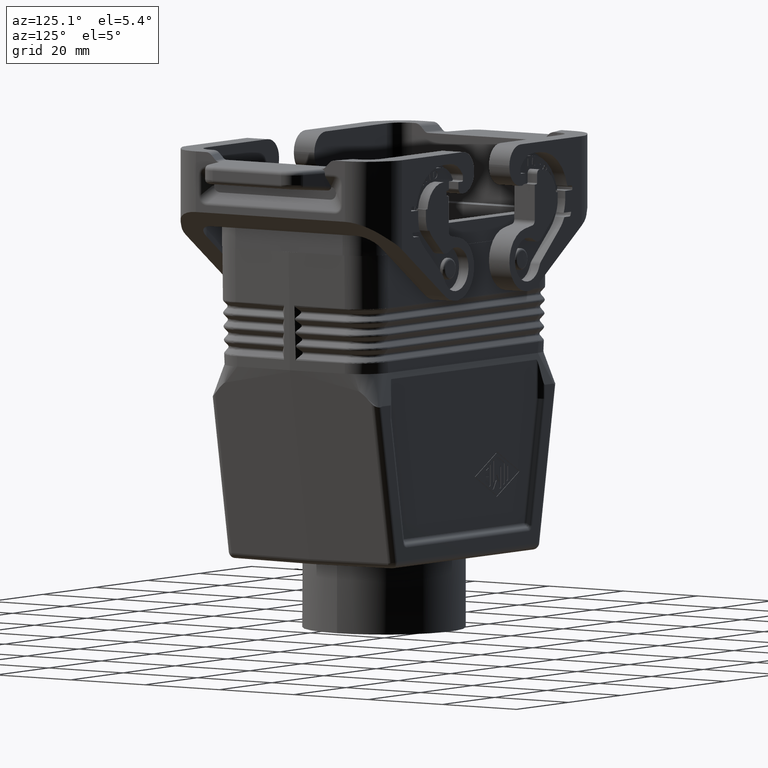
[diagram: clean part render]
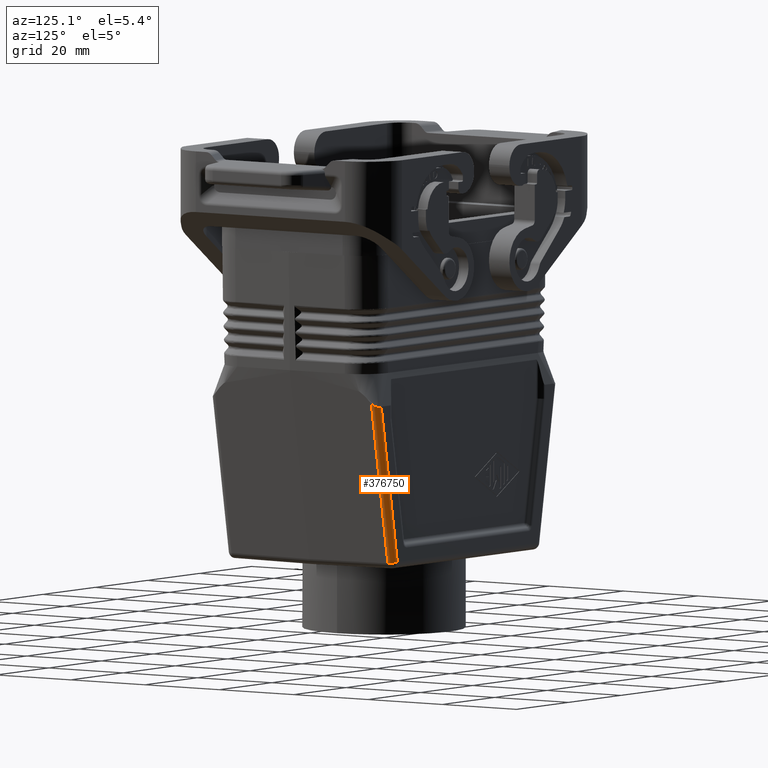
[diagram: same view with one face highlighted and labeled with its STEP entity id]
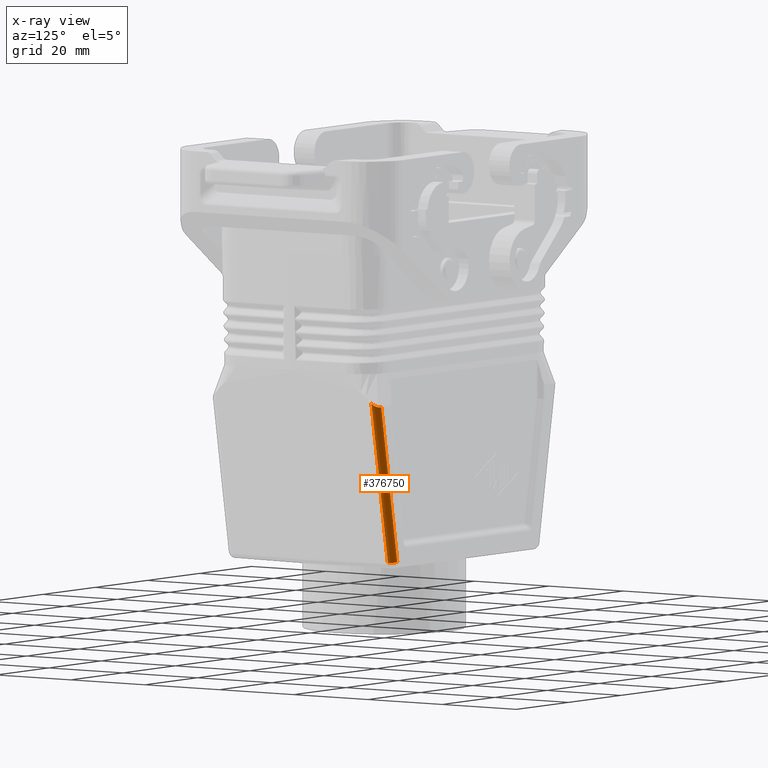
[diagram: x-ray of the same camera — body ghosted, the highlighted face saturated]
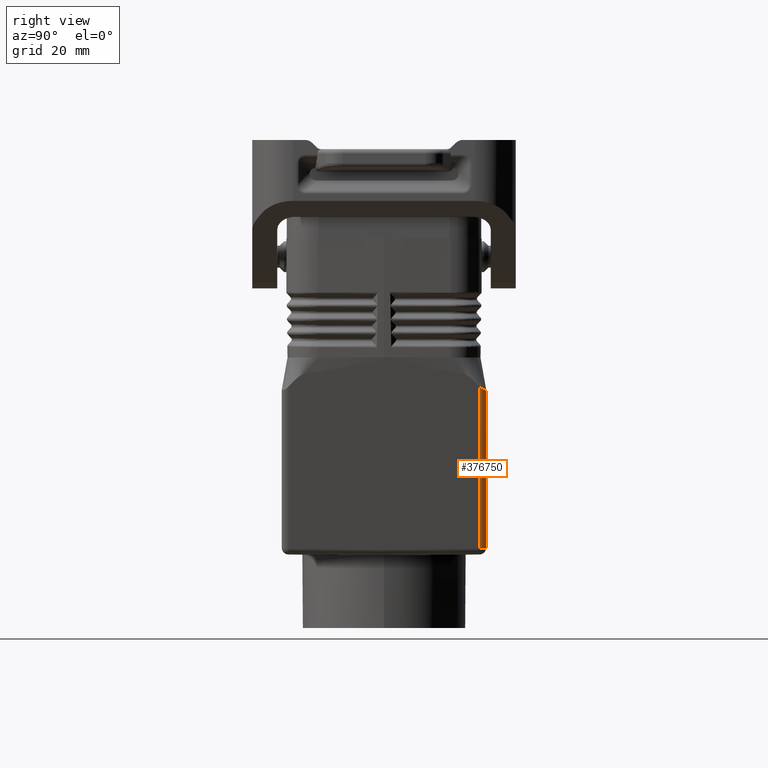
[diagram: same view with one face highlighted and labeled with its STEP entity id]
A machine part, auxiliary view. The second image highlights one B-rep face of the part: STEP entity #376750.
The next image is the same camera in x-ray: the body ghosted, the highlighted face saturated — about 0% of this face is hidden behind the body in this view.
A second angle (right view) of the same face is appended — the face is thin or edge-on in the first view.
In plain terms, the highlighted cylindrical surface (edge-blend (fillet) strip) has radius 1.5 mm, axis along (0.1737, -0, 0.9848).
Its self-contained STEP definition (entity closure, byte-faithful):
#194300=CARTESIAN_POINT('',(74.3722335945684,-1.25369332327057,
26.4503933502534));
#194310=CARTESIAN_POINT('',(74.3722335945684,-2.15748339873318,
26.4503933502534));
#194320=CARTESIAN_POINT('',(74.5472324668817,-3.05267802881065,
26.4503933616133));
#194330=CARTESIAN_POINT('',(75.0010106738518,-4.16889562860016,
26.4503933907643));
#194340=CARTESIAN_POINT('',(75.1321108299956,-4.43974349232645,
26.4503933992191));
#194350=CARTESIAN_POINT('',(75.5753148259334,-5.22298386241636,
26.4503934279893));
#194360=CARTESIAN_POINT('',(75.9373221944019,-5.70607314980513,
26.4503934513732));
#194370=CARTESIAN_POINT('',(76.7780754863489,-6.56913053800693,
26.4503935051613));
#194380=CARTESIAN_POINT('',(77.2515229865253,-6.94365965516091,
26.4503935355656));
#194390=CARTESIAN_POINT('',(78.0228932366796,-7.40721461319576,
26.4503935853971));
#194400=CARTESIAN_POINT('',(78.2902164872184,-7.54535981324702,
26.4503936025656));
#194410=CARTESIAN_POINT('',(79.394173064625,-8.02820168476844,
26.4503936729983));
#194420=CARTESIAN_POINT('',(80.2844800013657,-8.22657404753696,
26.4503937297794));
#194430=CARTESIAN_POINT('',(81.1879603735476,-8.25023250876846,
26.4503937873198));
#194440=CARTESIAN_POINT('',(72.7810512949949,-6.46272143320624,
35.4132158993642));
#194450=CARTESIAN_POINT('',(72.7810512949948,-6.55782515166359,
35.4132158993642));
#194460=CARTESIAN_POINT('',(72.7997367081725,-6.65413793838236,
35.3941338360077));
#194470=CARTESIAN_POINT('',(72.8464103802631,-6.776499650854,
35.3451670965131));
#194480=CARTESIAN_POINT('',(72.8600856270302,-6.8070614770544,
35.3309650792768));
#194490=CARTESIAN_POINT('',(72.9074075201654,-6.8978031469168,
35.2826379273786));
#194500=CARTESIAN_POINT('',(72.9453880149251,-6.95348791112306,
35.2433585804778));
#194510=CARTESIAN_POINT('',(73.0305714434927,-7.05339903552313,
35.1530072431514));
#194520=CARTESIAN_POINT('',(73.079208529622,-7.09909759425522,
35.1019352527258));
#194530=CARTESIAN_POINT('',(73.1601659708067,-7.15825792256459,
35.0182301702531));
#194540=CARTESIAN_POINT('',(73.1876357171184,-7.17587200008342,
34.9893910963061));
#194550=CARTESIAN_POINT('',(73.2983570317508,-7.23816387008687,
34.8710809391622));
#194560=CARTESIAN_POINT('',(73.3875302856631,-7.2683659477026,
34.7757021332534));
#194570=CARTESIAN_POINT('',(73.4775530002577,-7.27901078753535,
34.6790478294572));
#194580=B_SPLINE_SURFACE_WITH_KNOTS('',3,1,((#194300,#194440),(#194310,
#194450),(#194320,#194460),(#194330,#194470),(#194340,#194480),(#194350,
#194490),(#194360,#194500),(#194370,#194510),(#194380,#194520),(#194390,
#194530),(#194400,#194540),(#194410,#194550),(#194420,#194560),(#194430,
#194570)),.UNSPECIFIED.,.F.,.F.,.F.,(4,2,2,2,2,2,4),(2,2),(0.,
2.71136878210222,3.61515837613629,5.42273756420443,7.23031675227258,
8.13410634630665,10.8454751284089),(0.999995358485235,8.79664513599171),
.UNSPECIFIED.);
#195260=CARTESIAN_POINT('',(73.1199999999573,-5.65956246401542,
33.5896768630065));
#195270=VERTEX_POINT('',#195260);
#195300=CARTESIAN_POINT('',(74.6199999999573,-5.54687518186857,
34.2285391921959));
#195310=DIRECTION('',(0.,-0.173705907155949,-0.984797572001032));
#195320=DIRECTION('',(0.,-0.984797572001032,0.173705907155949));
#195330=AXIS2_PLACEMENT_3D('',#195300,#195310,#195320);
#195340=CYLINDRICAL_SURFACE('',#195330,1.5);
#195350=CARTESIAN_POINT('',(73.1199999999573,-5.65956246350177,
33.5896768627562));
#195360=CARTESIAN_POINT('',(73.1199999999639,-5.67013814427624,
33.5948296258775));
#195370=CARTESIAN_POINT('',(73.1201280654089,-5.68086597256323,
33.5997034512441));
#195380=CARTESIAN_POINT('',(73.1203901787267,-5.69172178101489,
33.604301913371));
#195390=CARTESIAN_POINT('',(73.1206522906456,-5.70257753152423,
33.6089003509539));
#195400=CARTESIAN_POINT('',(73.1210484620278,-5.71356085128691,
33.6132233030079));
#195410=CARTESIAN_POINT('',(73.1215826421571,-5.72464442679965,
33.6172778915748));
#195420=CARTESIAN_POINT('',(73.1221460083803,-5.73633357757988,
33.6215540114113));
#195430=CARTESIAN_POINT('',(73.1228628930784,-5.74813384910919,
33.6255315411897));
#195440=CARTESIAN_POINT('',(73.1237352423741,-5.76001135750117,
33.6292227769668));
#195450=CARTESIAN_POINT('',(73.1246075919836,-5.77188887016448,
33.6329140140713));
#195460=CARTESIAN_POINT('',(73.1256353848026,-5.78384328602947,
33.636318943862));
#195470=CARTESIAN_POINT('',(73.1268177793914,-5.79584036265305,
33.6394530796681));
#195480=CARTESIAN_POINT('',(73.1280001768545,-5.80783746844148,
33.6425872230934));
#195490=CARTESIAN_POINT('',(73.1293371477825,-5.81987699857761,
33.6454505894385));
#195500=CARTESIAN_POINT('',(73.1308251892042,-5.83192550021306,
33.6480609406056));
#195510=CARTESIAN_POINT('',(73.1323125175534,-5.84396822818204,
33.6506700408871));
#195520=CARTESIAN_POINT('',(73.1339530326137,-5.85604076340136,
33.6530313764622));
#195530=CARTESIAN_POINT('',(73.1357487163466,-5.86814801375955,
33.6551666909029));
#195540=CARTESIAN_POINT('',(73.139339568953,-5.89235904307848,
33.6594367075458));
#195550=CARTESIAN_POINT('',(73.1435482250384,-5.91667922021135,
33.6627976210653));
#195560=CARTESIAN_POINT('',(73.1483580553212,-5.94098437282737,
33.6653756058463));
#195570=CARTESIAN_POINT('',(73.1531678954187,-5.96528957503918,
33.6679535958878));
#195580=CARTESIAN_POINT('',(73.1585789900459,-5.98958009641881,
33.6697485586523));
#195590=CARTESIAN_POINT('',(73.1645591523504,-6.01373665033718,
33.6708713374571));
#195600=CARTESIAN_POINT('',(73.1705394523366,-6.03789376041351,
33.6719941421117));
#195610=CARTESIAN_POINT('',(73.1770881666244,-6.06191452892154,
33.6724445036982));
#195620=CARTESIAN_POINT('',(73.1841591204541,-6.08569062869841,
33.6723208053194));
#195630=CARTESIAN_POINT('',(73.1912330710746,-6.109476805192,
33.6721970545151));
#195640=CARTESIAN_POINT('',(73.1988575482216,-6.13311414693164,
33.6714983946752));
#195650=CARTESIAN_POINT('',(73.2070027919649,-6.15654074185663,
33.6702967011201));
#195660=CARTESIAN_POINT('',(73.2151499389914,-6.17997281082799,
33.6690947267676));
#195670=CARTESIAN_POINT('',(73.2238087373108,-6.20317048737444,
33.6673912115241));
#195680=CARTESIAN_POINT('',(73.2329701181156,-6.22614360151595,
33.6652416575921));
#195690=CARTESIAN_POINT('',(73.2421328641211,-6.24912013903996,
33.6630917833402));
#195700=CARTESIAN_POINT('',(73.2518014045652,-6.27187747674656,
33.6604942933558));
#195710=CARTESIAN_POINT('',(73.2619483122978,-6.29437524418747,
33.6574944086562));
#195720=CARTESIAN_POINT('',(73.2732978824306,-6.3195395598719,
33.6541389625749));
#195730=CARTESIAN_POINT('',(73.2852460948703,-6.34437909463951,
33.6502800164246));
#195740=CARTESIAN_POINT('',(73.2977481281374,-6.36883906516589,
33.6459712148842));
#195750=CARTESIAN_POINT('',(73.3102509933205,-6.39330066331889,
33.6416621266255));
#195760=CARTESIAN_POINT('',(73.3233038592373,-6.41737567882455,
33.6369046535407));
#195770=CARTESIAN_POINT('',(73.3368657323993,-6.44103134853457,
33.631740667734));
#195780=CARTESIAN_POINT('',(73.3504347245612,-6.46469943575567,
33.6265739712093));
#195790=CARTESIAN_POINT('',(73.3645521959029,-6.4880157422689,
33.6209847264894));
#195800=CARTESIAN_POINT('',(73.3791849417475,-6.51094573877591,
33.6150016253408));
#195810=CARTESIAN_POINT('',(73.393817673281,-6.53387571285709,
33.6090185300438));
#195820=CARTESIAN_POINT('',(73.408965662456,-6.55641925680193,
33.6026414808865));
#195830=CARTESIAN_POINT('',(73.4245911091542,-6.57854227160853,
33.5958947588545));
#195840=CARTESIAN_POINT('',(73.4402165467493,-6.60066527352676,
33.5891480407531));
#195850=CARTESIAN_POINT('',(73.4563193572808,-6.62236755766761,
33.5820316118387));
#195860=CARTESIAN_POINT('',(73.4728570384654,-6.64361655583073,
33.5745667224465));
#195870=CARTESIAN_POINT('',(73.4893947207449,-6.6648655554005,
33.5671018325602));
#195880=CARTESIAN_POINT('',(73.5063671358839,-6.68566104531672,
33.5592884892008));
#195890=CARTESIAN_POINT('',(73.52372724817,-6.70597309627366,
33.5511458040296));
#195900=CARTESIAN_POINT('',(73.5410873756024,-6.72628516495245,
33.543003111754));
#195910=CARTESIAN_POINT('',(73.5588350202517,-6.74611355741975,
33.5345311185624));
#195920=CARTESIAN_POINT('',(73.5769190226165,-6.76543202426524,
33.5257473415716));
#195930=CARTESIAN_POINT('',(73.5950030577363,-6.78475052610162,
33.5169635486711));
#195940=CARTESIAN_POINT('',(73.6134232372614,-6.80355886611022,
33.5078680381863));
#195950=CARTESIAN_POINT('',(73.6321249139027,-6.82183541260258,
33.4984770254374));
#195960=CARTESIAN_POINT('',(73.6508161481433,-6.84010175407288,
33.4890912563209));
#195970=CARTESIAN_POINT('',(73.6698193895188,-6.85786907956674,
33.4793955092004));
#195980=CARTESIAN_POINT('',(73.6891620479106,-6.87518292820893,
33.4693584965034));
#195990=CARTESIAN_POINT('',(73.7084991632822,-6.89249181522645,
33.4593243601103));
#196000=CARTESIAN_POINT('',(73.7281523145059,-6.90932488935913,
33.448960552608));
#196010=CARTESIAN_POINT('',(73.7480777474873,-6.92566490434712,
33.4382668842699));
#196020=CARTESIAN_POINT('',(73.7680031392455,-6.94200488552966,
33.4275732380557));
#196030=CARTESIAN_POINT('',(73.7882006476546,-6.957851610882,
33.4165497950441));
#196040=CARTESIAN_POINT('',(73.8086215020099,-6.97319036063409,
33.405195358723));
#196050=CARTESIAN_POINT('',(73.8290423363114,-6.98852909532308,
33.3938409335522));
#196060=CARTESIAN_POINT('',(73.8496863138365,-7.00335966163879,
33.3821555885848));
#196070=CARTESIAN_POINT('',(73.8705002052321,-7.01767110175872,
33.3701372972437));
#196080=CARTESIAN_POINT('',(73.8913140969633,-7.03198254210944,
33.3581190057088));
#196090=CARTESIAN_POINT('',(73.9122976627264,-7.04577467220555,
33.3457678454702));
#196100=CARTESIAN_POINT('',(73.9333939902302,-7.05904131324673,
33.3330812684066));
#196110=CARTESIAN_POINT('',(73.9544903383881,-7.0723079672765,
33.3203946789223));
#196120=CARTESIAN_POINT('',(73.9756991684129,-7.08504896060176,
33.3073727526614));
#196130=CARTESIAN_POINT('',(73.996960939149,-7.0972636914725,
33.2940129097088));
#196140=CARTESIAN_POINT('',(74.0182227520796,-7.10947844658363,
33.2806530402434));
#196150=CARTESIAN_POINT('',(74.0395371811303,-7.121166783621,
33.2669553397616));
#196160=CARTESIAN_POINT('',(74.0608434648879,-7.13233423785679,
33.2529178680519));
#196170=CARTESIAN_POINT('',(74.0821499767291,-7.14350181164014,
33.238880246071));
#196180=CARTESIAN_POINT('',(74.1034472721743,-7.1541480247011,
33.2245034291068));
#196190=CARTESIAN_POINT('',(74.1246771831232,-7.1642857845185,
33.2097855298543));
#196200=CARTESIAN_POINT('',(74.1459118633293,-7.17442582176343,
33.1950643242551));
#196210=CARTESIAN_POINT('',(74.1671384593095,-7.1840854452734,
33.1799607407945));
#196220=CARTESIAN_POINT('',(74.1882982234191,-7.19327473702491,
33.1644705055803));
#196230=CARTESIAN_POINT('',(74.2094579704388,-7.20246402135457,
33.148980282877));
#196240=CARTESIAN_POINT('',(74.2305504022823,-7.21118282922716,
33.1331035426869));
#196250=CARTESIAN_POINT('',(74.2515170709474,-7.21944671796196,
33.1168411843735));
#196260=CARTESIAN_POINT('',(74.2724837589975,-7.22771061433725,
33.1005788110244));
#196270=CARTESIAN_POINT('',(74.2933241436087,-7.23551948071971,
33.0839310285189));
#196280=CARTESIAN_POINT('',(74.313983105166,-7.242894343006,
33.0669048897784));
#196290=CARTESIAN_POINT('',(74.3346404793813,-7.25026863864094,
33.0498800592502));
#196300=CARTESIAN_POINT('',(74.355116380539,-7.25720959932285,
33.0324776886237));
#196310=CARTESIAN_POINT('',(74.3754077186666,-7.26375628004834,
33.0146686590891));
#196320=CARTESIAN_POINT('',(74.3956956712999,-7.2703018684974,
32.9968626008896));
#196330=CARTESIAN_POINT('',(74.4157835098185,-7.27644786087618,
32.978662770696));
#196340=CARTESIAN_POINT('',(74.4356286100355,-7.28222044288279,
32.9600857310105));
#196350=CARTESIAN_POINT('',(74.4554737082325,-7.28799302430183,
32.9415086932159));
#196360=CARTESIAN_POINT('',(74.4750755859308,-7.29339216045957,
32.9225548376357));
#196370=CARTESIAN_POINT('',(74.4943989165442,-7.29844621629337,
32.903249226007));
#196380=CARTESIAN_POINT('',(74.5137248591412,-7.30350095529671,
32.8839410047899));
#196390=CARTESIAN_POINT('',(74.5327608026164,-7.30820792469156,
32.8642931063132));
#196400=CARTESIAN_POINT('',(74.5515123415876,-7.31260415409844,
32.8443033645326));
#196410=CARTESIAN_POINT('',(74.5702655518167,-7.31700077532557,
32.8243118411376));
#196420=CARTESIAN_POINT('',(74.5887366671953,-7.32108694340653,
32.8039753853407));
#196430=CARTESIAN_POINT('',(74.6069101967137,-7.32489063731128,
32.7833239832588));
#196440=B_SPLINE_CURVE_WITH_KNOTS('',3,(#195350,#195360,#195370,#195380,
#195390,#195400,#195410,#195420,#195430,#195440,#195450,#195460,#195470,
#195480,#195490,#195500,#195510,#195520,#195530,#195540,#195550,#195560,
#195570,#195580,#195590,#195600,#195610,#195620,#195630,#195640,#195650,
#195660,#195670,#195680,#195690,#195700,#195710,#195720,#195730,#195740,
#195750,#195760,#195770,#195780,#195790,#195800,#195810,#195820,#195830,
#195840,#195850,#195860,#195870,#195880,#195890,#195900,#195910,#195920,
#195930,#195940,#195950,#195960,#195970,#195980,#195990,#196000,#196010,
#196020,#196030,#196040,#196050,#196060,#196070,#196080,#196090,#196100,
#196110,#196120,#196130,#196140,#196150,#196160,#196170,#196180,#196190,
#196200,#196210,#196220,#196230,#196240,#196250,#196260,#196270,#196280,
#196290,#196300,#196310,#196320,#196330,#196340,#196350,#196360,#196370,
#196380,#196390,#196400,#196410,#196420,#196430),.UNSPECIFIED.,.F.,.F.,(
4,3,3,3,3,3,3,3,3,3,3,3,3,3,3,3,3,3,3,3,3,3,3,3,3,3,3,3,3,3,3,3,3,3,3,3,
4),(0.,0.0353356241248488,0.0707476926870798,0.108144064446695,
0.145536501547966,0.182853636964188,0.220096701258423,0.294739984491476,
0.36949429437867,0.444098548776796,0.518580081770266,0.593051658112642,
0.667595286965018,0.75102982608729,0.834374267045681,0.91780618675081,
1.00145871930725,1.08524852366424,1.16907075546997,1.25280396949453,
1.33631488578148,1.41967190879518,1.50326296029617,1.58704364329612,
1.67093533413854,1.75484889471533,1.83868941799786,1.92236072522196,
2.00577045456118,2.08909255756154,2.17246680508823,2.25581265835234,
2.33910672810692,2.42246030179702,2.5058185803286,2.58911279034739,
2.67241469491427),.UNSPECIFIED.);
#196450=SURFACE_CURVE('',#196440,(#195340,#194580),.CURVE_3D.);
#196460=CARTESIAN_POINT('',(74.6069101967137,-7.32489063731128,
32.7833239832588));
#196470=VERTEX_POINT('',#196460);
#196480=EDGE_CURVE('',#195270,#196470,#196450,.T.);
#199180=CARTESIAN_POINT('',(74.6069101967098,-7.02401529275919,
34.4890881316468));
#199190=DIRECTION('',(0.,-0.173705907155949,-0.984797572001032));
#199200=VECTOR('',#199190,1.);
#199210=LINE('',#199180,#199200);
#199220=CARTESIAN_POINT('',(74.6069101967098,-1.01129617397017,
68.577227598266));
#199230=VERTEX_POINT('',#199220);
#199240=EDGE_CURVE('',#199230,#196470,#199210,.T.);
#350100=CARTESIAN_POINT('',(73.1199999999573,0.46584393692045,
68.3166786588151));
#350110=VERTEX_POINT('',#350100);
#350140=CARTESIAN_POINT('',(73.1199999999573,-5.54687518186857,
34.2285391921959));
#350150=DIRECTION('',(0.,-0.173705907155949,-0.984797572001032));
#350160=VECTOR('',#350150,1.);
#350170=LINE('',#350140,#350160);
#350180=EDGE_CURVE('',#350110,#195270,#350170,.T.);
#376630=ORIENTED_EDGE('',*,*,#350180,.T.);
#376640=CARTESIAN_POINT('',(74.6199999999573,0.46584393692045,
68.3166786588151));
#376650=DIRECTION('',(0.,-0.173705907155949,-0.984797572001032));
#376660=DIRECTION('',(0.,-0.984797572001033,0.173705907155949));
#376670=AXIS2_PLACEMENT_3D('',#376640,#376650,#376660);
#376680=CIRCLE('',#376670,1.5);
#376690=EDGE_CURVE('',#199230,#350110,#376680,.T.);
#376700=ORIENTED_EDGE('',*,*,#376690,.T.);
#376710=ORIENTED_EDGE('',*,*,#199240,.F.);
#376720=ORIENTED_EDGE('',*,*,#196480,.T.);
#376730=EDGE_LOOP('',(#376720,#376710,#376700,#376630));
#376740=FACE_OUTER_BOUND('',#376730,.T.);
#376750=ADVANCED_FACE('',(#376740),#195340,.T.);